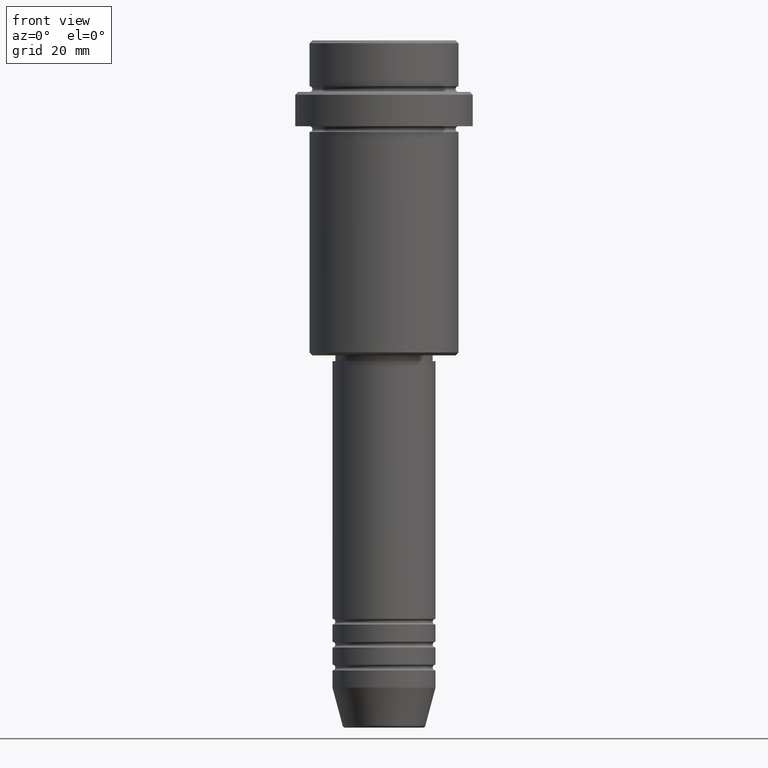
[diagram: clean part render]
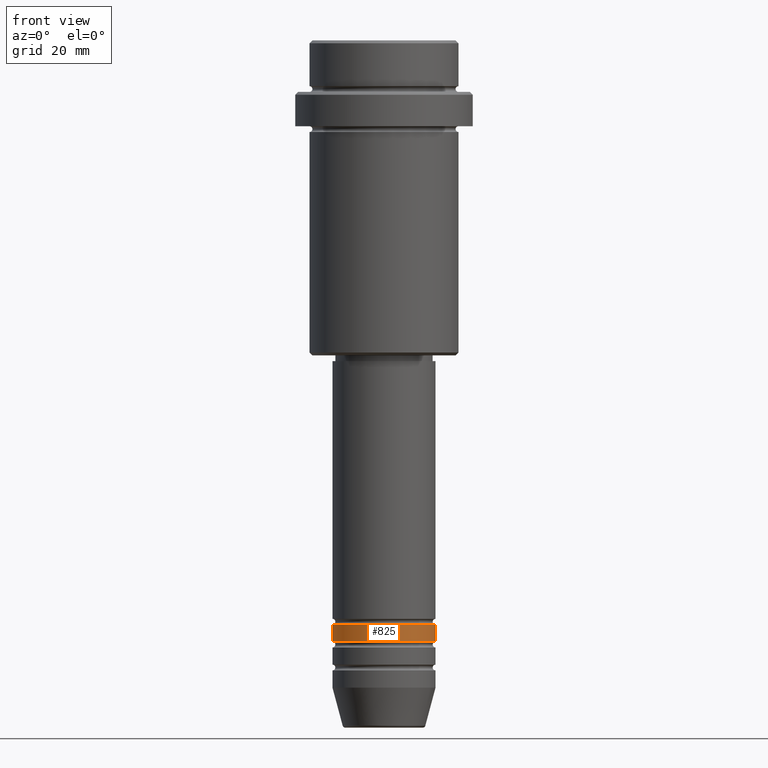
[diagram: same view with one face highlighted and labeled with its STEP entity id]
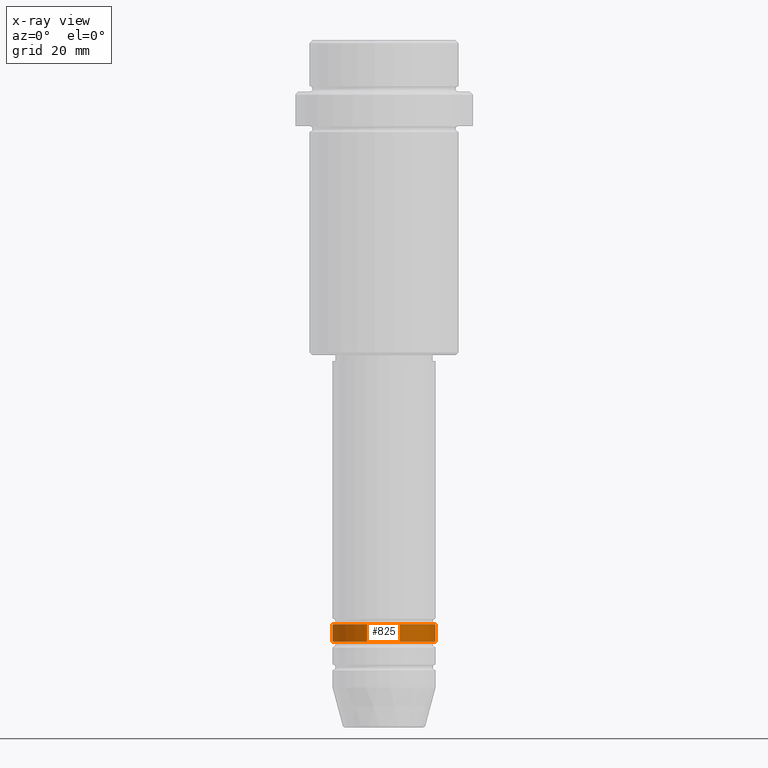
[diagram: x-ray of the same camera — body ghosted, the highlighted face saturated]
A machine part, front view. The second image highlights one B-rep face of the part: STEP entity #825.
The next image is the same camera in x-ray: the body ghosted, the highlighted face saturated — about 0% of this face is hidden behind the body in this view.
In plain terms, the highlighted cylindrical surface (partial cylindrical patch) has radius 9 mm, axis along (-0, -0, 1).
Its self-contained STEP definition (entity closure, byte-faithful):
#14 = FACE_OUTER_BOUND ( 'NONE', #1283, .T. ) ;
#43 = DIRECTION ( 'NONE',  ( -0.000000000000000000, -0.000000000000000000, 1.000000000000000000 ) ) ;
#69 = CARTESIAN_POINT ( 'NONE',  ( -9.000000000000000000, 1.102182119232617714E-15, -104.9999999999999005 ) ) ;
#78 = DIRECTION ( 'NONE',  ( -0.000000000000000000, -0.000000000000000000, 1.000000000000000000 ) ) ;
#104 = AXIS2_PLACEMENT_3D ( 'NONE', #237, #1019, #695 ) ;
#231 = ORIENTED_EDGE ( 'NONE', *, *, #789, .F. ) ;
#237 = CARTESIAN_POINT ( 'NONE',  ( 0.000000000000000000, 0.000000000000000000, -104.9999999999999005 ) ) ;
#246 = CYLINDRICAL_SURFACE ( 'NONE', #470, 9.000000000000000000 ) ;
#273 = ORIENTED_EDGE ( 'NONE', *, *, #1082, .T. ) ;
#303 = ORIENTED_EDGE ( 'NONE', *, *, #500, .T. ) ;
#466 = DIRECTION ( 'NONE',  ( 1.000000000000000000, 0.000000000000000000, 0.000000000000000000 ) ) ;
#470 = AXIS2_PLACEMENT_3D ( 'NONE', #673, #43, #466 ) ;
#474 = CARTESIAN_POINT ( 'NONE',  ( 0.000000000000000000, 0.000000000000000000, -101.9999999999999005 ) ) ;
#500 = EDGE_CURVE ( 'NONE', #999, #1399, #1068, .T. ) ;
#552 = CARTESIAN_POINT ( 'NONE',  ( 9.000000000000000000, 0.000000000000000000, -101.9999999999999005 ) ) ;
#579 = DIRECTION ( 'NONE',  ( 1.000000000000000000, 0.000000000000000000, 0.000000000000000000 ) ) ;
#584 = CIRCLE ( 'NONE', #104, 9.000000000000000000 ) ;
#673 = CARTESIAN_POINT ( 'NONE',  ( 0.000000000000000000, 0.000000000000000000, 0.000000000000000000 ) ) ;
#695 = DIRECTION ( 'NONE',  ( 1.000000000000000000, 0.000000000000000000, 0.000000000000000000 ) ) ;
#701 = VECTOR ( 'NONE', #78, 1000.000000000000000 ) ;
#789 = EDGE_CURVE ( 'NONE', #1111, #1399, #953, .T. ) ;
#808 = DIRECTION ( 'NONE',  ( -0.000000000000000000, -0.000000000000000000, 1.000000000000000000 ) ) ;
#825 = ADVANCED_FACE ( 'NONE', ( #14 ), #246, .T. ) ;
#827 = EDGE_CURVE ( 'NONE', #1219, #1111, #1245, .T. ) ;
#887 = VECTOR ( 'NONE', #808, 1000.000000000000000 ) ;
#917 = CARTESIAN_POINT ( 'NONE',  ( -9.000000000000000000, 1.102182119232617714E-15, 0.000000000000000000 ) ) ;
#941 = CARTESIAN_POINT ( 'NONE',  ( -9.000000000000000000, 1.102182119232617714E-15, -101.9999999999999005 ) ) ;
#953 = CIRCLE ( 'NONE', #1317, 9.000000000000000000 ) ;
#999 = VERTEX_POINT ( 'NONE', #1109 ) ;
#1008 = DIRECTION ( 'NONE',  ( -0.000000000000000000, -0.000000000000000000, 1.000000000000000000 ) ) ;
#1019 = DIRECTION ( 'NONE',  ( -0.000000000000000000, -0.000000000000000000, 1.000000000000000000 ) ) ;
#1068 = LINE ( 'NONE', #1371, #701 ) ;
#1070 = ORIENTED_EDGE ( 'NONE', *, *, #827, .F. ) ;
#1082 = EDGE_CURVE ( 'NONE', #1219, #999, #584, .T. ) ;
#1109 = CARTESIAN_POINT ( 'NONE',  ( 9.000000000000000000, 0.000000000000000000, -104.9999999999999005 ) ) ;
#1111 = VERTEX_POINT ( 'NONE', #941 ) ;
#1219 = VERTEX_POINT ( 'NONE', #69 ) ;
#1245 = LINE ( 'NONE', #917, #887 ) ;
#1283 = EDGE_LOOP ( 'NONE', ( #1070, #273, #303, #231 ) ) ;
#1317 = AXIS2_PLACEMENT_3D ( 'NONE', #474, #1008, #579 ) ;
#1371 = CARTESIAN_POINT ( 'NONE',  ( 9.000000000000000000, 0.000000000000000000, 0.000000000000000000 ) ) ;
#1399 = VERTEX_POINT ( 'NONE', #552 ) ;